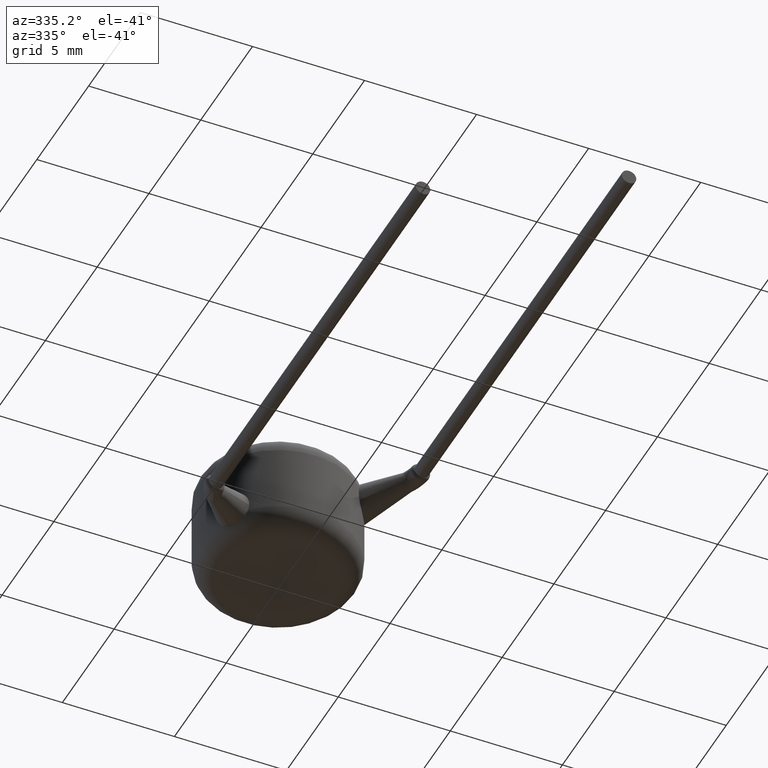
[diagram: clean part render]
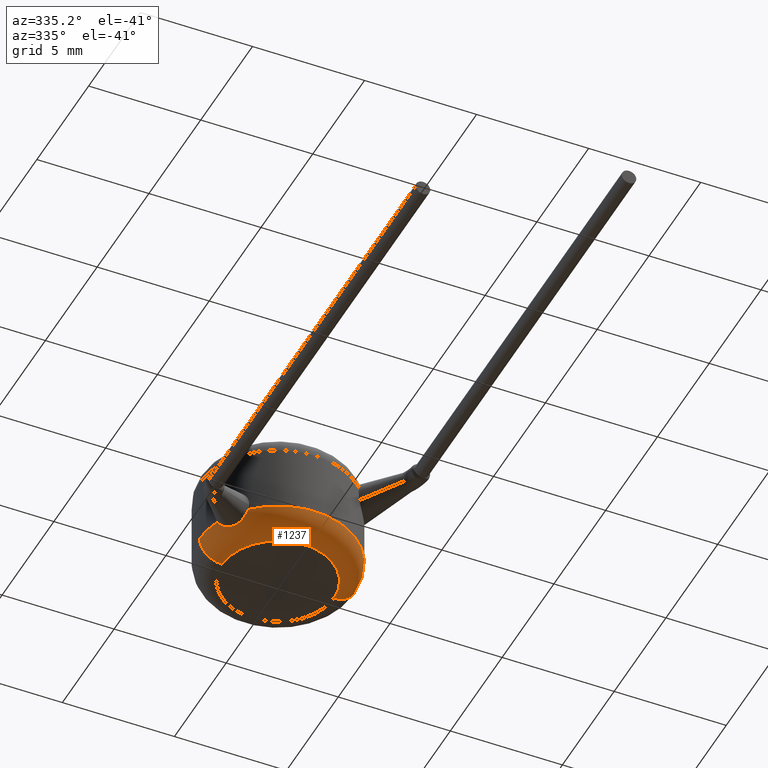
[diagram: same view with one face highlighted and labeled with its STEP entity id]
A machine part, auxiliary view. The second image highlights one B-rep face of the part: STEP entity #1237.
In plain terms, the highlighted toroidal blend (fillet) surface has major radius 2.5 mm and minor (blend) radius 1 mm.
Its self-contained STEP definition (entity closure, byte-faithful):
#9 = CARTESIAN_POINT ( 'NONE',  ( 0.0000000000000000000, 0.0000000000000000000, 1.000000000000000000 ) ) ;
#29 = VERTEX_POINT ( 'NONE', #3676 ) ;
#35 = AXIS2_PLACEMENT_3D ( 'NONE', #1407, #1733, #3043 ) ;
#79 = AXIS2_PLACEMENT_3D ( 'NONE', #3440, #3776, #4095 ) ;
#211 = ORIENTED_EDGE ( 'NONE', *, *, #1786, .F. ) ;
#265 = CARTESIAN_POINT ( 'NONE',  ( -2.664815090675084700, -2.105428540862164700, 0.5416299260811559000 ) ) ;
#306 = CIRCLE ( 'NONE', #35, 3.500000000000000000 ) ;
#511 = VERTEX_POINT ( 'NONE', #1372 ) ;
#542 = EDGE_LOOP ( 'NONE', ( #2843, #3823, #1179, #2534, #4182, #211 ) ) ;
#543 = CARTESIAN_POINT ( 'NONE',  ( -3.240330776209322700, -1.303422963677255400, 0.8613778838416107400 ) ) ;
#567 = B_SPLINE_CURVE_WITH_KNOTS ( 'NONE', 3,
 ( #4155, #1481, #543, #2483, #4168, #2189, #3128, #1154, #265, #1889, #3241, #620 ),
 .UNSPECIFIED., .F., .F.,
 ( 4, 2, 2, 2, 2, 4 ),
 ( 2.201488408605145100E-007, 0.0002367437847649895200, 0.0004732674206891185600, 0.0009463146925373752900, 0.001419361964385632200, 0.001892409236233889100 ),
 .UNSPECIFIED. ) ;
#620 = CARTESIAN_POINT ( 'NONE',  ( -2.475472572416411900, -2.474274750955130800, 1.000000000016324500 ) ) ;
#720 = CARTESIAN_POINT ( 'NONE',  ( -2.475472572416411900, -2.474274750955130800, 1.000000000016324500 ) ) ;
#769 = DIRECTION ( 'NONE',  ( 1.000000000000000000, 0.0000000000000000000, 0.0000000000000000000 ) ) ;
#782 = VERTEX_POINT ( 'NONE', #720 ) ;
#793 = VERTEX_POINT ( 'NONE', #3997 ) ;
#946 = DIRECTION ( 'NONE',  ( 1.000000000000000000, 0.0000000000000000000, 0.0000000000000000000 ) ) ;
#1021 = CARTESIAN_POINT ( 'NONE',  ( -2.500000000000000000, 3.061616997868383100E-016, 1.000000000000000000 ) ) ;
#1154 = CARTESIAN_POINT ( 'NONE',  ( -2.737252706157553100, -1.962240532941522200, 0.4968870046347537200 ) ) ;
#1161 = CARTESIAN_POINT ( 'NONE',  ( 2.500000000000000000, 0.0000000000000000000, 1.000000000000000000 ) ) ;
#1179 = ORIENTED_EDGE ( 'NONE', *, *, #1901, .T. ) ;
#1208 = CIRCLE ( 'NONE', #3080, 2.500000000000000000 ) ;
#1237 = ADVANCED_FACE ( 'NONE', ( #3442 ), #3437, .T. ) ;
#1286 = AXIS2_PLACEMENT_3D ( 'NONE', #9, #3931, #946 ) ;
#1287 = VERTEX_POINT ( 'NONE', #2854 ) ;
#1372 = CARTESIAN_POINT ( 'NONE',  ( 3.500000000000000000, 4.286263797015736600E-016, 1.000000000000000000 ) ) ;
#1404 = EDGE_CURVE ( 'NONE', #2288, #782, #567, .T. ) ;
#1407 = CARTESIAN_POINT ( 'NONE',  ( 0.0000000000000000000, 0.0000000000000000000, 1.000000000000000000 ) ) ;
#1481 = CARTESIAN_POINT ( 'NONE',  ( -3.262390413801155500, -1.268096656430527800, 0.9283789587758291000 ) ) ;
#1620 = CIRCLE ( 'NONE', #1286, 3.500000000000000000 ) ;
#1631 = EDGE_CURVE ( 'NONE', #793, #1287, #3129, .T. ) ;
#1733 = DIRECTION ( 'NONE',  ( 0.0000000000000000000, 0.0000000000000000000, 1.000000000000000000 ) ) ;
#1786 = EDGE_CURVE ( 'NONE', #1287, #2288, #306, .T. ) ;
#1836 = DIRECTION ( 'NONE',  ( 0.0000000000000000000, 0.0000000000000000000, -1.000000000000000000 ) ) ;
#1889 = CARTESIAN_POINT ( 'NONE',  ( -2.552812628216128800, -2.344855184948182000, 0.7175704251714827300 ) ) ;
#1901 = EDGE_CURVE ( 'NONE', #29, #511, #4062, .T. ) ;
#2093 = CARTESIAN_POINT ( 'NONE',  ( -3.274916067099860100, -1.234878436709940400, 1.000000000000000000 ) ) ;
#2189 = CARTESIAN_POINT ( 'NONE',  ( -3.013485254299566500, -1.576404860084353200, 0.5509484223957005200 ) ) ;
#2288 = VERTEX_POINT ( 'NONE', #2093 ) ;
#2359 = EDGE_CURVE ( 'NONE', #29, #793, #1208, .T. ) ;
#2416 = DIRECTION ( 'NONE',  ( -0.0000000000000000000, -0.0000000000000000000, -1.000000000000000000 ) ) ;
#2483 = CARTESIAN_POINT ( 'NONE',  ( -3.179585963284837100, -1.383828636013428000, 0.7388805961955082800 ) ) ;
#2534 = ORIENTED_EDGE ( 'NONE', *, *, #2882, .F. ) ;
#2671 = AXIS2_PLACEMENT_3D ( 'NONE', #1021, #3331, #2987 ) ;
#2843 = ORIENTED_EDGE ( 'NONE', *, *, #1631, .F. ) ;
#2854 = CARTESIAN_POINT ( 'NONE',  ( -3.500000000000000000, 0.0000000000000000000, 1.000000000000000000 ) ) ;
#2882 = EDGE_CURVE ( 'NONE', #782, #511, #1620, .T. ) ;
#2987 = DIRECTION ( 'NONE',  ( -1.000000000000000000, 1.224646799147353500E-016, 0.0000000000000000000 ) ) ;
#3043 = DIRECTION ( 'NONE',  ( 1.000000000000000000, 0.0000000000000000000, 0.0000000000000000000 ) ) ;
#3080 = AXIS2_PLACEMENT_3D ( 'NONE', #3380, #2416, #769 ) ;
#3108 = AXIS2_PLACEMENT_3D ( 'NONE', #1161, #3797, #1836 ) ;
#3128 = CARTESIAN_POINT ( 'NONE',  ( -2.910957881881591100, -1.698442747486354800, 0.5008491146995114300 ) ) ;
#3129 = CIRCLE ( 'NONE', #2671, 1.000000000000000000 ) ;
#3241 = CARTESIAN_POINT ( 'NONE',  ( -2.512611161058652800, -2.437118183149561200, 0.8485526754278069900 ) ) ;
#3331 = DIRECTION ( 'NONE',  ( 1.224646799147353200E-016, 1.000000000000000000, -0.0000000000000000000 ) ) ;
#3380 = CARTESIAN_POINT ( 'NONE',  ( 0.0000000000000000000, 0.0000000000000000000, 0.0000000000000000000 ) ) ;
#3437 = TOROIDAL_SURFACE ( 'NONE', #79, 2.500000000000000000, 1.000000000000000000 ) ;
#3440 = CARTESIAN_POINT ( 'NONE',  ( 0.0000000000000000000, 0.0000000000000000000, 1.000000000000000000 ) ) ;
#3442 = FACE_OUTER_BOUND ( 'NONE', #542, .T. ) ;
#3676 = CARTESIAN_POINT ( 'NONE',  ( 2.500000000000000000, 0.0000000000000000000, 0.0000000000000000000 ) ) ;
#3776 = DIRECTION ( 'NONE',  ( 0.0000000000000000000, 0.0000000000000000000, 1.000000000000000000 ) ) ;
#3797 = DIRECTION ( 'NONE',  ( 0.0000000000000000000, -1.000000000000000000, 0.0000000000000000000 ) ) ;
#3823 = ORIENTED_EDGE ( 'NONE', *, *, #2359, .F. ) ;
#3931 = DIRECTION ( 'NONE',  ( 0.0000000000000000000, 0.0000000000000000000, 1.000000000000000000 ) ) ;
#3997 = CARTESIAN_POINT ( 'NONE',  ( -2.500000000000000000, 3.673940397442059900E-016, 0.0000000000000000000 ) ) ;
#4062 = CIRCLE ( 'NONE', #3108, 1.000000000000000000 ) ;
#4095 = DIRECTION ( 'NONE',  ( 1.000000000000000000, 0.0000000000000000000, 0.0000000000000000000 ) ) ;
#4155 = CARTESIAN_POINT ( 'NONE',  ( -3.274916067099860100, -1.234878436709940400, 1.000000000000000000 ) ) ;
#4168 = CARTESIAN_POINT ( 'NONE',  ( -3.141101154256140200, -1.428501838864814700, 0.6844292269458957000 ) ) ;
#4182 = ORIENTED_EDGE ( 'NONE', *, *, #1404, .F. ) ;